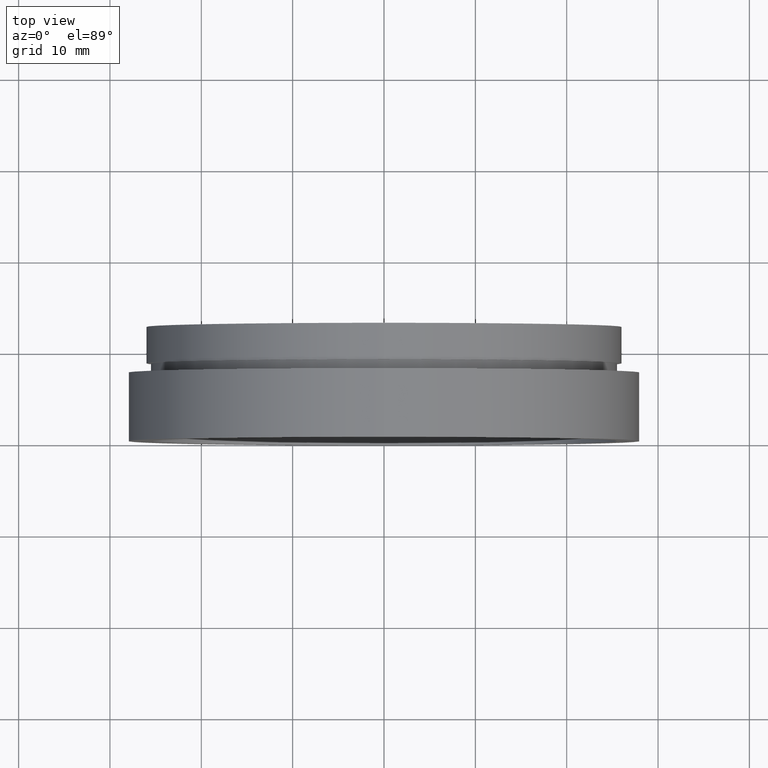
[diagram: clean part render]
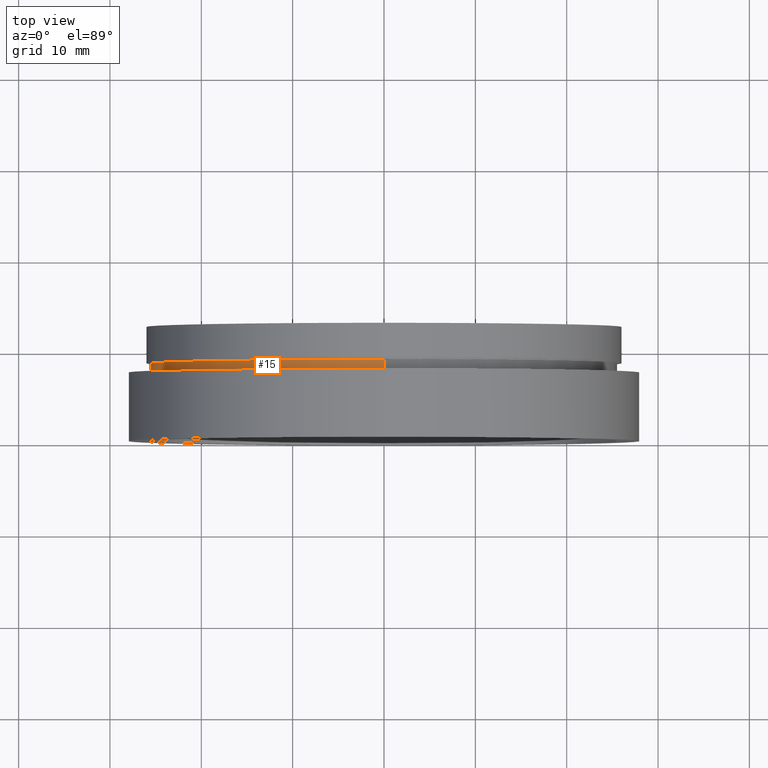
[diagram: same view with one face highlighted and labeled with its STEP entity id]
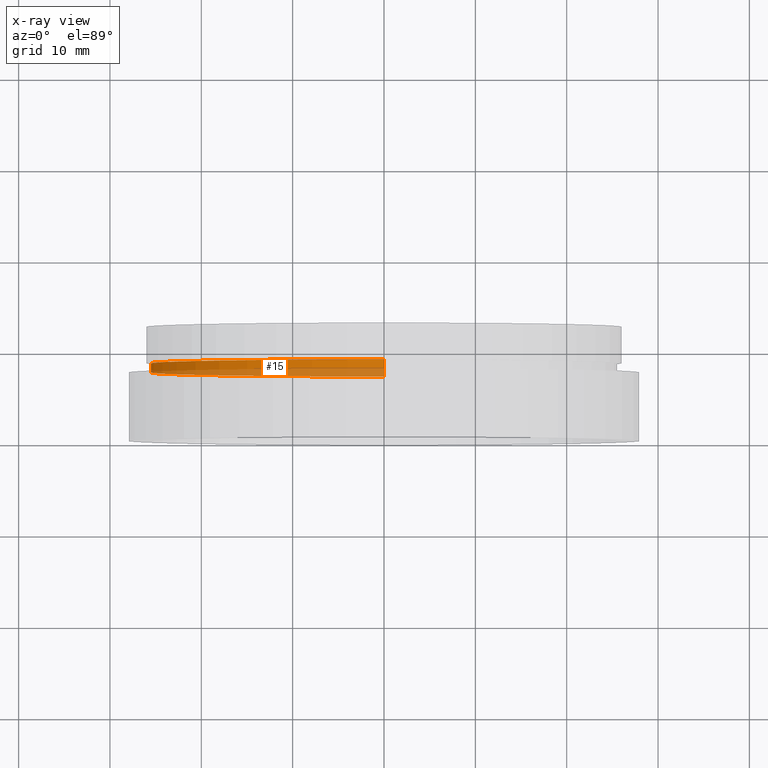
[diagram: x-ray of the same camera — body ghosted, the highlighted face saturated]
A machine part, top view. The second image highlights one B-rep face of the part: STEP entity #15.
The next image is the same camera in x-ray: the body ghosted, the highlighted face saturated — about 41% of this face is hidden behind the body in this view.
In plain terms, the highlighted cylindrical surface (partial cylindrical patch) has radius 25.5 mm, axis along (-0, 1, -0).
Its self-contained STEP definition (entity closure, byte-faithful):
#15 = ADVANCED_FACE ( 'NONE', ( #318 ), #45, .T. ) ;
#22 = DIRECTION ( 'NONE',  ( -0.0000000000000000000, 1.000000000000000000, -0.0000000000000000000 ) ) ;
#45 = CYLINDRICAL_SURFACE ( 'NONE', #548, 25.50000000000001400 ) ;
#46 = CIRCLE ( 'NONE', #484, 25.50000000000001400 ) ;
#63 = ORIENTED_EDGE ( 'NONE', *, *, #101, .T. ) ;
#66 = VERTEX_POINT ( 'NONE', #481 ) ;
#94 = DIRECTION ( 'NONE',  ( -0.0000000000000000000, 1.000000000000000000, -0.0000000000000000000 ) ) ;
#101 = EDGE_CURVE ( 'NONE', #356, #66, #413, .T. ) ;
#107 = LINE ( 'NONE', #193, #357 ) ;
#115 = VECTOR ( 'NONE', #94, 1000.000000000000000 ) ;
#129 = ORIENTED_EDGE ( 'NONE', *, *, #344, .F. ) ;
#133 = CARTESIAN_POINT ( 'NONE',  ( 0.0000000000000000000, 7.499999999999978700, 0.0000000000000000000 ) ) ;
#172 = LINE ( 'NONE', #388, #115 ) ;
#189 = CARTESIAN_POINT ( 'NONE',  ( 0.0000000000000000000, 8.499999999999980500, 25.50000000000001400 ) ) ;
#193 = CARTESIAN_POINT ( 'NONE',  ( 3.122849337825752600E-015, 161.3761669434274500, -25.50000000000001400 ) ) ;
#231 = EDGE_CURVE ( 'NONE', #66, #561, #172, .T. ) ;
#318 = FACE_OUTER_BOUND ( 'NONE', #475, .T. ) ;
#321 = CARTESIAN_POINT ( 'NONE',  ( 0.0000000000000000000, 161.3761669434274500, 0.0000000000000000000 ) ) ;
#343 = ORIENTED_EDGE ( 'NONE', *, *, #231, .T. ) ;
#344 = EDGE_CURVE ( 'NONE', #356, #438, #107, .T. ) ;
#356 = VERTEX_POINT ( 'NONE', #579 ) ;
#357 = VECTOR ( 'NONE', #533, 1000.000000000000000 ) ;
#374 = DIRECTION ( 'NONE',  ( -0.0000000000000000000, 1.000000000000000000, -0.0000000000000000000 ) ) ;
#388 = CARTESIAN_POINT ( 'NONE',  ( 0.0000000000000000000, 161.3761669434274500, 25.50000000000001400 ) ) ;
#398 = CARTESIAN_POINT ( 'NONE',  ( 3.122849337825752600E-015, 8.499999999999980500, -25.50000000000001400 ) ) ;
#413 = CIRCLE ( 'NONE', #517, 25.50000000000001400 ) ;
#438 = VERTEX_POINT ( 'NONE', #398 ) ;
#450 = CARTESIAN_POINT ( 'NONE',  ( 0.0000000000000000000, 8.499999999999980500, 0.0000000000000000000 ) ) ;
#465 = ORIENTED_EDGE ( 'NONE', *, *, #473, .F. ) ;
#472 = DIRECTION ( 'NONE',  ( 0.0000000000000000000, 0.0000000000000000000, 1.000000000000000000 ) ) ;
#473 = EDGE_CURVE ( 'NONE', #438, #561, #46, .T. ) ;
#475 = EDGE_LOOP ( 'NONE', ( #129, #63, #343, #465 ) ) ;
#477 = DIRECTION ( 'NONE',  ( 0.0000000000000000000, 0.0000000000000000000, 1.000000000000000000 ) ) ;
#481 = CARTESIAN_POINT ( 'NONE',  ( 0.0000000000000000000, 7.499999999999978700, 25.50000000000001400 ) ) ;
#484 = AXIS2_PLACEMENT_3D ( 'NONE', #450, #500, #477 ) ;
#500 = DIRECTION ( 'NONE',  ( -0.0000000000000000000, 1.000000000000000000, -0.0000000000000000000 ) ) ;
#517 = AXIS2_PLACEMENT_3D ( 'NONE', #133, #374, #614 ) ;
#533 = DIRECTION ( 'NONE',  ( -0.0000000000000000000, 1.000000000000000000, -0.0000000000000000000 ) ) ;
#548 = AXIS2_PLACEMENT_3D ( 'NONE', #321, #22, #472 ) ;
#561 = VERTEX_POINT ( 'NONE', #189 ) ;
#579 = CARTESIAN_POINT ( 'NONE',  ( 3.122849337825752600E-015, 7.499999999999978700, -25.50000000000001400 ) ) ;
#614 = DIRECTION ( 'NONE',  ( 0.0000000000000000000, 0.0000000000000000000, 1.000000000000000000 ) ) ;